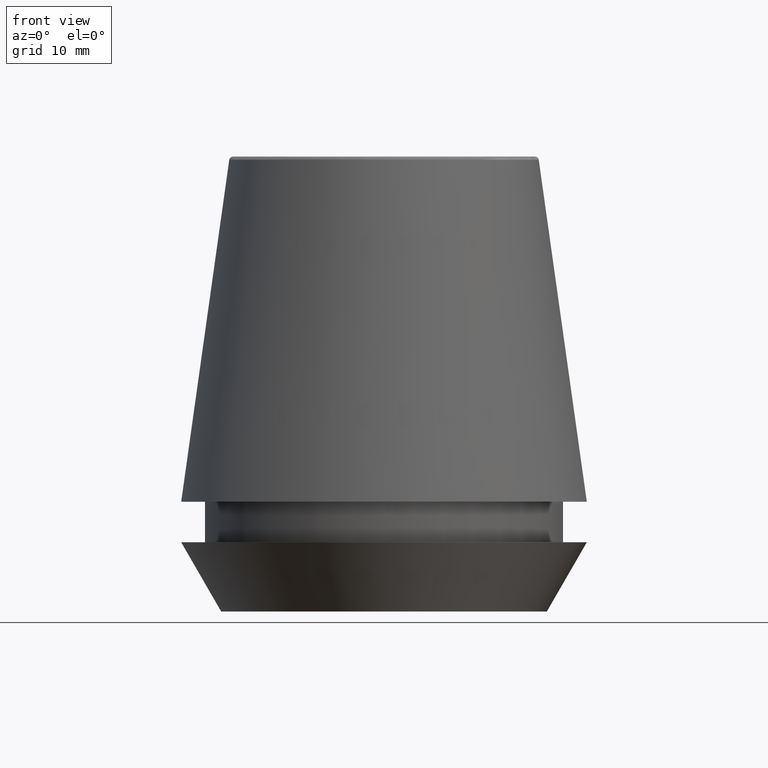
[diagram: clean part render]
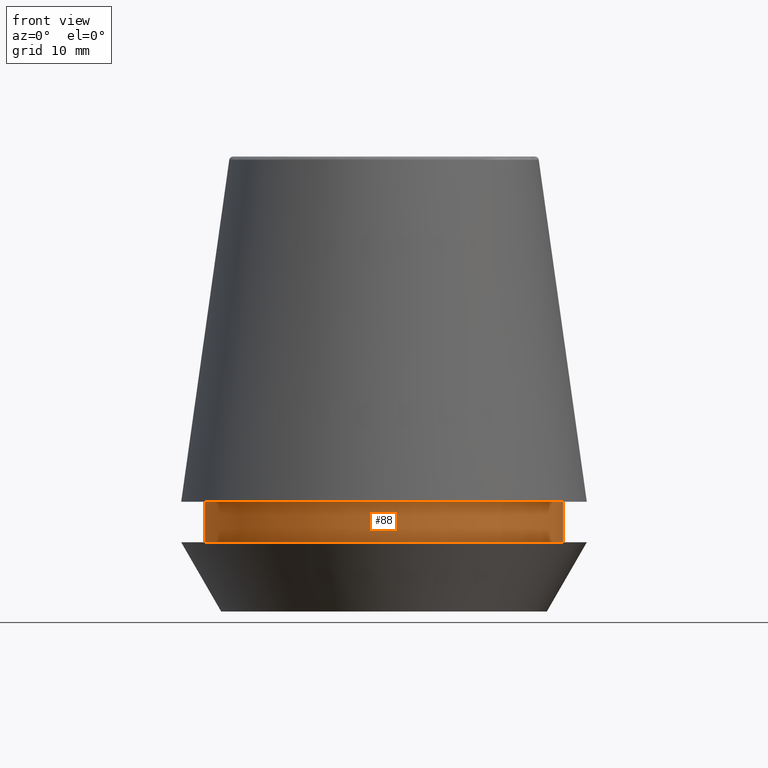
[diagram: same view with one face highlighted and labeled with its STEP entity id]
A machine part, front view. The second image highlights one B-rep face of the part: STEP entity #88.
In plain terms, the highlighted cylindrical surface (partial cylindrical patch) has radius 18.1 mm, axis along (-0, -0, 1).
Its self-contained STEP definition (entity closure, byte-faithful):
#1 = DIRECTION ( 'NONE',  ( 1.000000000000000000, 0.0000000000000000000, 0.0000000000000000000 ) ) ;
#28 = EDGE_CURVE ( 'NONE', #158, #382, #237, .T. ) ;
#33 = DIRECTION ( 'NONE',  ( -0.0000000000000000000, -0.0000000000000000000, 1.000000000000000000 ) ) ;
#36 = CARTESIAN_POINT ( 'NONE',  ( 0.0000000000000000000, 0.0000000000000000000, 46.00000000000000000 ) ) ;
#49 = VERTEX_POINT ( 'NONE', #232 ) ;
#51 = CARTESIAN_POINT ( 'NONE',  ( 18.10000000000000500, 0.0000000000000000000, 46.00000000000000000 ) ) ;
#58 = AXIS2_PLACEMENT_3D ( 'NONE', #180, #246, #1 ) ;
#68 = EDGE_LOOP ( 'NONE', ( #75, #288, #210, #325 ) ) ;
#72 = DIRECTION ( 'NONE',  ( 1.000000000000000000, 0.0000000000000000000, 0.0000000000000000000 ) ) ;
#75 = ORIENTED_EDGE ( 'NONE', *, *, #324, .F. ) ;
#80 = VECTOR ( 'NONE', #137, 1000.000000000000000 ) ;
#88 = ADVANCED_FACE ( 'NONE', ( #362 ), #227, .T. ) ;
#112 = DIRECTION ( 'NONE',  ( -0.0000000000000000000, -0.0000000000000000000, 1.000000000000000000 ) ) ;
#123 = CARTESIAN_POINT ( 'NONE',  ( 18.10000000000000500, 0.0000000000000000000, 11.09999999999999800 ) ) ;
#127 = CIRCLE ( 'NONE', #348, 18.10000000000000100 ) ;
#137 = DIRECTION ( 'NONE',  ( -0.0000000000000000000, -0.0000000000000000000, 1.000000000000000000 ) ) ;
#154 = LINE ( 'NONE', #51, #80 ) ;
#158 = VERTEX_POINT ( 'NONE', #349 ) ;
#180 = CARTESIAN_POINT ( 'NONE',  ( 0.0000000000000000000, 0.0000000000000000000, 11.09999999999999800 ) ) ;
#189 = CARTESIAN_POINT ( 'NONE',  ( -18.10000000000000500, 2.216610706456710000E-015, 46.00000000000000000 ) ) ;
#207 = CARTESIAN_POINT ( 'NONE',  ( -18.10000000000000100, 2.216610706456709600E-015, 6.999999999999999100 ) ) ;
#210 = ORIENTED_EDGE ( 'NONE', *, *, #305, .T. ) ;
#219 = LINE ( 'NONE', #189, #384 ) ;
#227 = CYLINDRICAL_SURFACE ( 'NONE', #355, 18.10000000000000500 ) ;
#232 = CARTESIAN_POINT ( 'NONE',  ( 18.10000000000000100, 0.0000000000000000000, 6.999999999999999100 ) ) ;
#237 = CIRCLE ( 'NONE', #58, 18.10000000000000500 ) ;
#239 = DIRECTION ( 'NONE',  ( -0.0000000000000000000, -0.0000000000000000000, 1.000000000000000000 ) ) ;
#246 = DIRECTION ( 'NONE',  ( -0.0000000000000000000, -0.0000000000000000000, 1.000000000000000000 ) ) ;
#272 = EDGE_CURVE ( 'NONE', #363, #49, #127, .T. ) ;
#288 = ORIENTED_EDGE ( 'NONE', *, *, #272, .T. ) ;
#305 = EDGE_CURVE ( 'NONE', #49, #382, #154, .T. ) ;
#324 = EDGE_CURVE ( 'NONE', #363, #158, #219, .T. ) ;
#325 = ORIENTED_EDGE ( 'NONE', *, *, #28, .F. ) ;
#345 = DIRECTION ( 'NONE',  ( 1.000000000000000000, 0.0000000000000000000, 0.0000000000000000000 ) ) ;
#348 = AXIS2_PLACEMENT_3D ( 'NONE', #377, #112, #345 ) ;
#349 = CARTESIAN_POINT ( 'NONE',  ( -18.10000000000000500, 2.216610706456710000E-015, 11.09999999999999800 ) ) ;
#355 = AXIS2_PLACEMENT_3D ( 'NONE', #36, #33, #72 ) ;
#362 = FACE_OUTER_BOUND ( 'NONE', #68, .T. ) ;
#363 = VERTEX_POINT ( 'NONE', #207 ) ;
#377 = CARTESIAN_POINT ( 'NONE',  ( 0.0000000000000000000, 0.0000000000000000000, 6.999999999999999100 ) ) ;
#382 = VERTEX_POINT ( 'NONE', #123 ) ;
#384 = VECTOR ( 'NONE', #239, 1000.000000000000000 ) ;